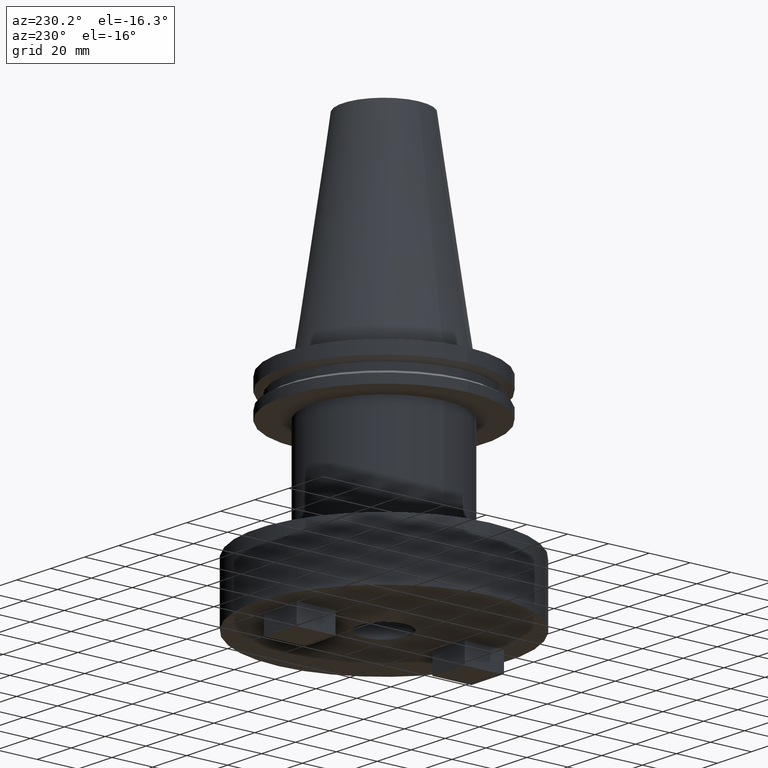
[diagram: clean part render]
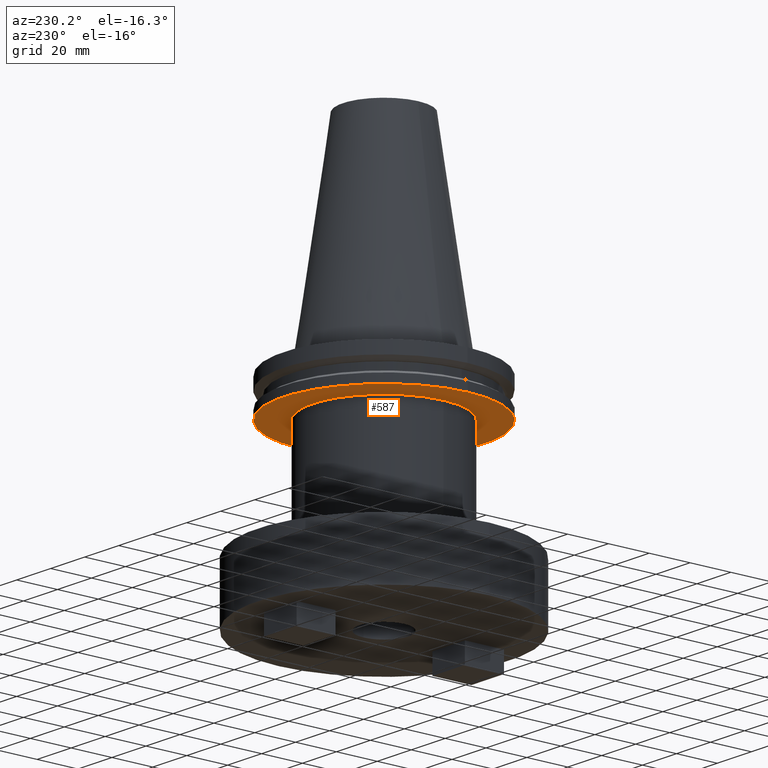
[diagram: same view with one face highlighted and labeled with its STEP entity id]
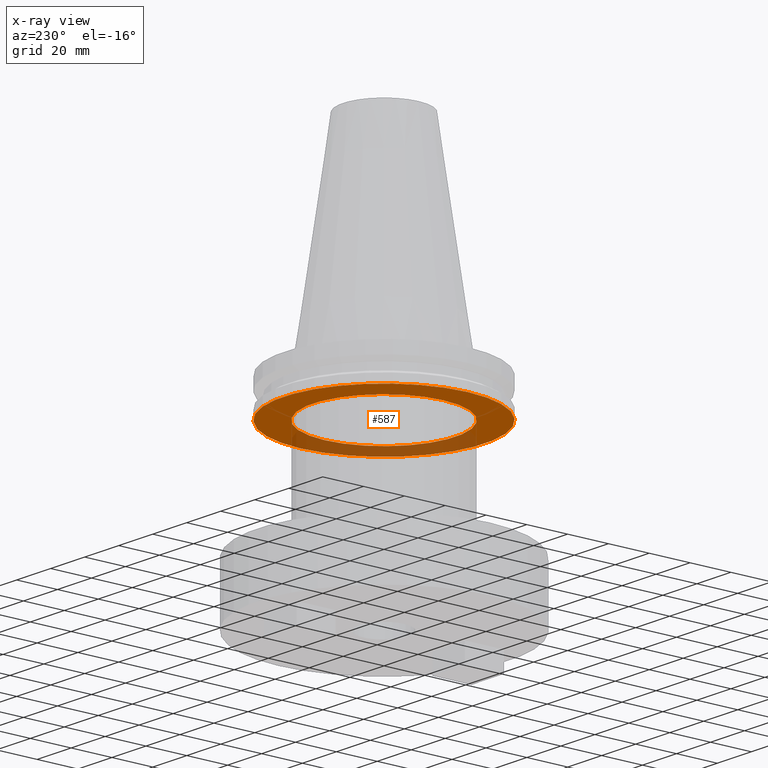
[diagram: x-ray of the same camera — body ghosted, the highlighted face saturated]
A machine part, auxiliary view. The second image highlights one B-rep face of the part: STEP entity #587.
The next image is the same camera in x-ray: the body ghosted, the highlighted face saturated — about 31% of this face is hidden behind the body in this view.
In plain terms, the highlighted planar face has unit normal (0, -0, 1).
Its self-contained STEP definition (entity closure, byte-faithful):
#21 = DIRECTION ( 'NONE',  ( -0.000000000000000000, -0.000000000000000000, 1.000000000000000000 ) ) ;
#25 = ORIENTED_EDGE ( 'NONE', *, *, #394, .F. ) ;
#32 = CIRCLE ( 'NONE', #84, 34.92499999999999716 ) ;
#39 = ORIENTED_EDGE ( 'NONE', *, *, #489, .F. ) ;
#44 = EDGE_LOOP ( 'NONE', ( #25, #39 ) ) ;
#51 = AXIS2_PLACEMENT_3D ( 'NONE', #251, #931, #175 ) ;
#60 = DIRECTION ( 'NONE',  ( -0.000000000000000000, -0.000000000000000000, 1.000000000000000000 ) ) ;
#63 = CIRCLE ( 'NONE', #459, 34.92499999999999716 ) ;
#84 = AXIS2_PLACEMENT_3D ( 'NONE', #983, #60, #146 ) ;
#103 = CARTESIAN_POINT ( 'NONE',  ( 34.92499999999999716, 0.000000000000000000, -19.04999999999999716 ) ) ;
#146 = DIRECTION ( 'NONE',  ( 1.000000000000000000, 0.000000000000000000, 0.000000000000000000 ) ) ;
#150 = CIRCLE ( 'NONE', #612, 49.21499999999998920 ) ;
#168 = DIRECTION ( 'NONE',  ( 1.000000000000000000, 0.000000000000000000, 0.000000000000000000 ) ) ;
#175 = DIRECTION ( 'NONE',  ( 1.000000000000000000, 0.000000000000000000, 0.000000000000000000 ) ) ;
#178 = DIRECTION ( 'NONE',  ( 1.000000000000000000, 0.000000000000000000, 0.000000000000000000 ) ) ;
#191 = AXIS2_PLACEMENT_3D ( 'NONE', #199, #953, #870 ) ;
#199 = CARTESIAN_POINT ( 'NONE',  ( 0.000000000000000000, 0.000000000000000000, -19.04999999999999716 ) ) ;
#218 = EDGE_CURVE ( 'NONE', #600, #233, #32, .T. ) ;
#233 = VERTEX_POINT ( 'NONE', #759 ) ;
#251 = CARTESIAN_POINT ( 'NONE',  ( 0.000000000000000000, 49.21499999999998920, -19.04999999999999716 ) ) ;
#253 = CARTESIAN_POINT ( 'NONE',  ( 49.21499999999998920, 0.000000000000000000, -19.04999999999999716 ) ) ;
#270 = CARTESIAN_POINT ( 'NONE',  ( 0.000000000000000000, 0.000000000000000000, -19.04999999999999716 ) ) ;
#329 = EDGE_CURVE ( 'NONE', #233, #600, #63, .T. ) ;
#367 = VERTEX_POINT ( 'NONE', #671 ) ;
#386 = ORIENTED_EDGE ( 'NONE', *, *, #329, .T. ) ;
#394 = EDGE_CURVE ( 'NONE', #941, #367, #631, .T. ) ;
#459 = AXIS2_PLACEMENT_3D ( 'NONE', #682, #21, #178 ) ;
#489 = EDGE_CURVE ( 'NONE', #367, #941, #150, .T. ) ;
#563 = ORIENTED_EDGE ( 'NONE', *, *, #218, .T. ) ;
#587 = ADVANCED_FACE ( 'NONE', ( #1014, #1011 ), #599, .F. ) ;
#599 = PLANE ( 'NONE',  #51 ) ;
#600 = VERTEX_POINT ( 'NONE', #103 ) ;
#612 = AXIS2_PLACEMENT_3D ( 'NONE', #270, #924, #168 ) ;
#631 = CIRCLE ( 'NONE', #191, 49.21499999999998920 ) ;
#671 = CARTESIAN_POINT ( 'NONE',  ( -49.21499999999998920, 6.027099222003697037E-15, -19.04999999999999716 ) ) ;
#682 = CARTESIAN_POINT ( 'NONE',  ( 0.000000000000000000, 0.000000000000000000, -19.04999999999999716 ) ) ;
#759 = CARTESIAN_POINT ( 'NONE',  ( -34.92499999999999716, 4.277078946022130887E-15, -19.04999999999999716 ) ) ;
#870 = DIRECTION ( 'NONE',  ( 1.000000000000000000, 0.000000000000000000, 0.000000000000000000 ) ) ;
#923 = EDGE_LOOP ( 'NONE', ( #563, #386 ) ) ;
#924 = DIRECTION ( 'NONE',  ( -0.000000000000000000, -0.000000000000000000, 1.000000000000000000 ) ) ;
#931 = DIRECTION ( 'NONE',  ( 0.000000000000000000, -0.000000000000000000, 1.000000000000000000 ) ) ;
#941 = VERTEX_POINT ( 'NONE', #253 ) ;
#953 = DIRECTION ( 'NONE',  ( -0.000000000000000000, -0.000000000000000000, 1.000000000000000000 ) ) ;
#983 = CARTESIAN_POINT ( 'NONE',  ( 0.000000000000000000, 0.000000000000000000, -19.04999999999999716 ) ) ;
#1011 = FACE_BOUND ( 'NONE', #923, .T. ) ;
#1014 = FACE_OUTER_BOUND ( 'NONE', #44, .T. ) ;